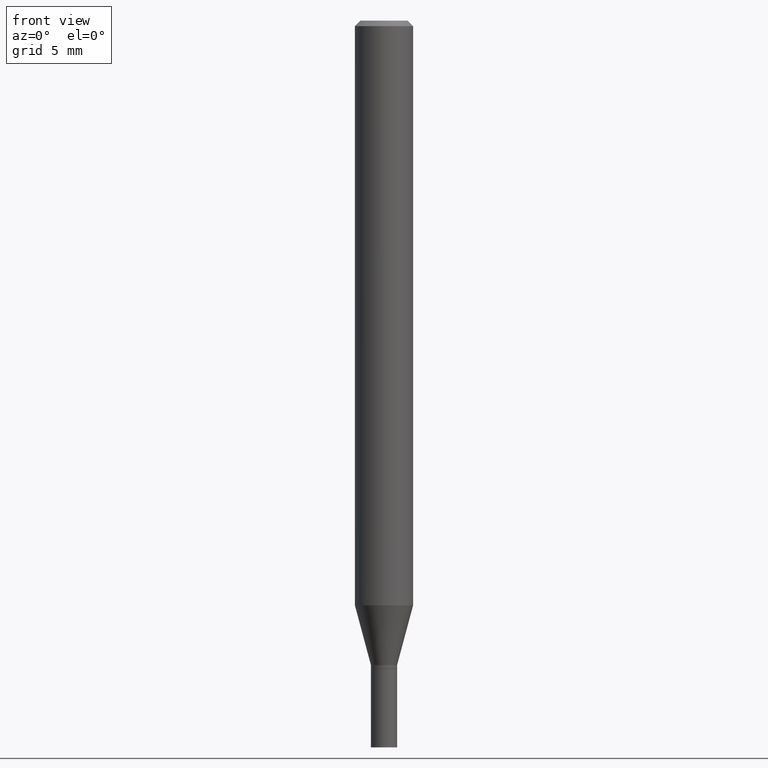
[diagram: clean part render]
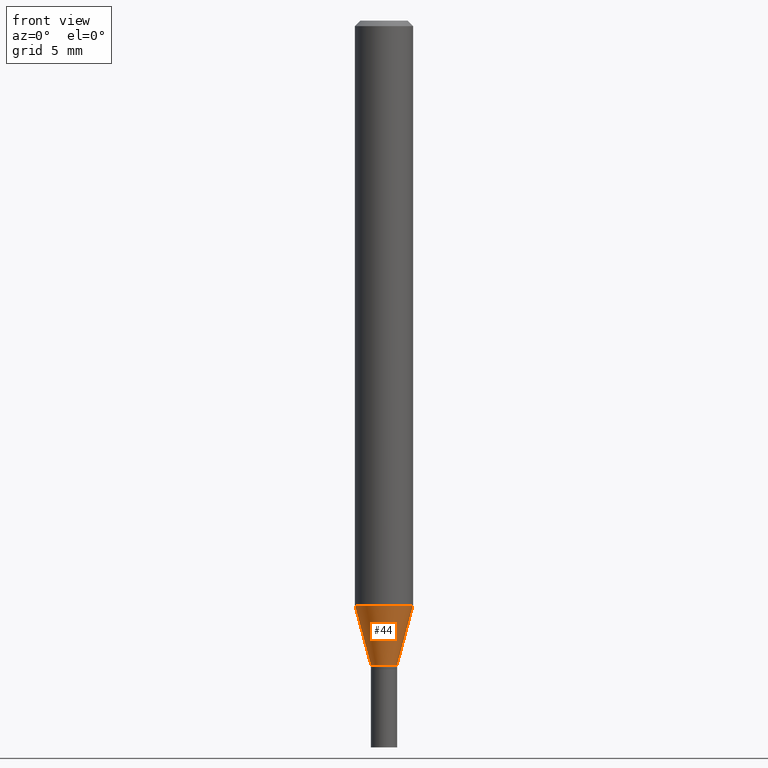
[diagram: same view with one face highlighted and labeled with its STEP entity id]
A machine part, front view. The second image highlights one B-rep face of the part: STEP entity #44.
In plain terms, the highlighted conical surface has half-angle 15 deg.
Its self-contained STEP definition (entity closure, byte-faithful):
#22 = CARTESIAN_POINT ( 'NONE',  ( 3.873383422226918900E-29, -5.530164973965262003E-15, -1.583902200032266672 ) ) ;
#30 = VECTOR ( 'NONE', #356, 39.37007874015747433 ) ;
#44 = ADVANCED_FACE ( 'NONE', ( #89 ), #147, .T. ) ;
#46 = ORIENTED_EDGE ( 'NONE', *, *, #453, .T. ) ;
#48 = DIRECTION ( 'NONE',  ( -2.445468806185136597E-29, 3.491481338843145583E-15, 1.000000000000000000 ) ) ;
#58 = CIRCLE ( 'NONE', #64, 0.07875000000000000056 ) ;
#64 = AXIS2_PLACEMENT_3D ( 'NONE', #22, #451, #420 ) ;
#89 = FACE_OUTER_BOUND ( 'NONE', #351, .T. ) ;
#97 = CIRCLE ( 'NONE', #276, 0.03544999999999965540 ) ;
#111 = AXIS2_PLACEMENT_3D ( 'NONE', #233, #48, #149 ) ;
#114 = VERTEX_POINT ( 'NONE', #298 ) ;
#138 = LINE ( 'NONE', #287, #198 ) ;
#143 = CARTESIAN_POINT ( 'NONE',  ( 0.07875000000000000056, -6.080073284833056138E-15, -1.583902200032266672 ) ) ;
#147 = CONICAL_SURFACE ( 'NONE', #111, 0.03544999999999965540, 0.2617993877991501295 ) ;
#149 = DIRECTION ( 'NONE',  ( 1.000000000000000000, -6.982962677686268288E-15, 0.000000000000000000 ) ) ;
#195 = EDGE_CURVE ( 'NONE', #114, #215, #97, .T. ) ;
#198 = VECTOR ( 'NONE', #354, 39.37007874015747433 ) ;
#215 = VERTEX_POINT ( 'NONE', #284 ) ;
#233 = CARTESIAN_POINT ( 'NONE',  ( 4.268565801196156073E-29, -6.094380676950710350E-15, -1.745500000000000052 ) ) ;
#242 = DIRECTION ( 'NONE',  ( 1.000000000000000000, -6.982962677686268288E-15, 0.000000000000000000 ) ) ;
#276 = AXIS2_PLACEMENT_3D ( 'NONE', #383, #343, #242 ) ;
#284 = CARTESIAN_POINT ( 'NONE',  ( 0.03544999999999965540, -6.341926703874685867E-15, -1.745500000000000052 ) ) ;
#286 = ORIENTED_EDGE ( 'NONE', *, *, #372, .F. ) ;
#287 = CARTESIAN_POINT ( 'NONE',  ( 0.03544999999999965540, -6.341926703874685867E-15, -1.745500000000000052 ) ) ;
#293 = CARTESIAN_POINT ( 'NONE',  ( -0.03544999999999965540, -5.842493277123757332E-15, -1.745500000000000052 ) ) ;
#298 = CARTESIAN_POINT ( 'NONE',  ( -0.03544999999999965540, -5.406552923338970267E-15, -1.745500000000000052 ) ) ;
#320 = VERTEX_POINT ( 'NONE', #143 ) ;
#343 = DIRECTION ( 'NONE',  ( -2.445468806185136597E-29, 3.491481338843145583E-15, 1.000000000000000000 ) ) ;
#349 = CARTESIAN_POINT ( 'NONE',  ( -0.07875000000000000056, -4.970612569554183991E-15, -1.583902200032266672 ) ) ;
#351 = EDGE_LOOP ( 'NONE', ( #286, #394, #46, #431 ) ) ;
#354 = DIRECTION ( 'NONE',  ( 0.2588190451025214611, 1.565188264969621573E-15, 0.9659258262890682012 ) ) ;
#356 = DIRECTION ( 'NONE',  ( -0.2588190451025214611, 5.211531920934551042E-15, 0.9659258262890682012 ) ) ;
#372 = EDGE_CURVE ( 'NONE', #114, #407, #427, .T. ) ;
#383 = CARTESIAN_POINT ( 'NONE',  ( 4.268565801196156073E-29, -6.094380676950710350E-15, -1.745500000000000052 ) ) ;
#394 = ORIENTED_EDGE ( 'NONE', *, *, #195, .T. ) ;
#407 = VERTEX_POINT ( 'NONE', #349 ) ;
#413 = EDGE_CURVE ( 'NONE', #407, #320, #58, .T. ) ;
#420 = DIRECTION ( 'NONE',  ( 1.000000000000000000, -6.982962677686261977E-15, 0.000000000000000000 ) ) ;
#427 = LINE ( 'NONE', #293, #30 ) ;
#431 = ORIENTED_EDGE ( 'NONE', *, *, #413, .F. ) ;
#451 = DIRECTION ( 'NONE',  ( -2.445468806185136597E-29, 3.491481338843145583E-15, 1.000000000000000000 ) ) ;
#453 = EDGE_CURVE ( 'NONE', #215, #320, #138, .T. ) ;